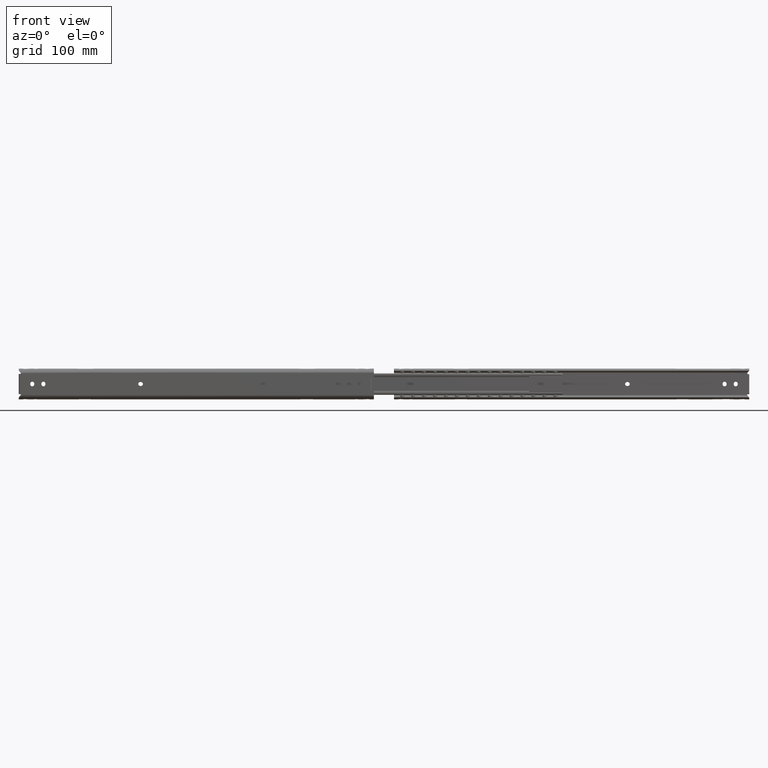
[diagram: clean part render]
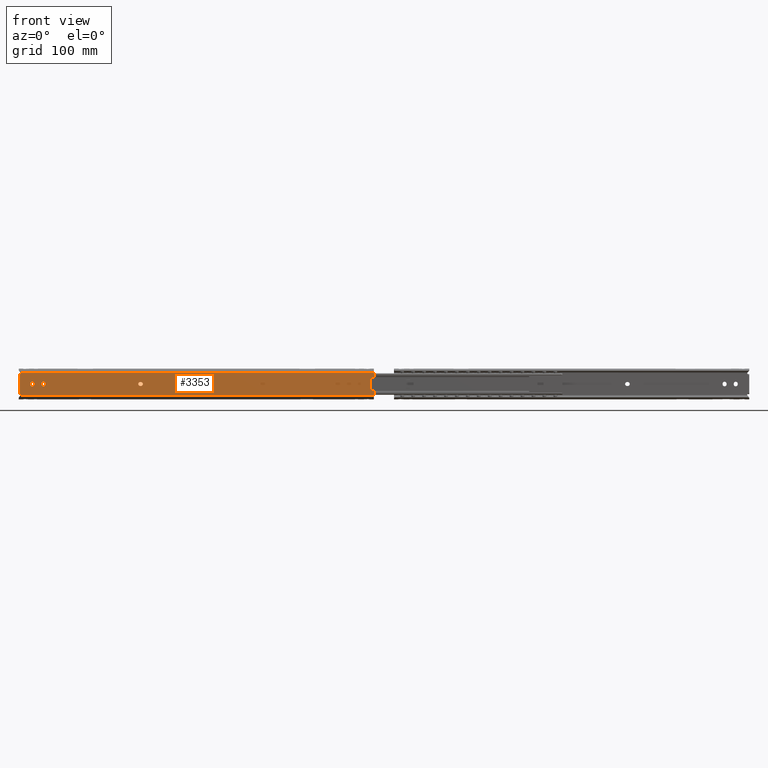
[diagram: same view with one face highlighted and labeled with its STEP entity id]
A machine part, front view. The second image highlights one B-rep face of the part: STEP entity #3353.
In plain terms, the highlighted face is a freeform B-spline surface patch.
Its self-contained STEP definition (entity closure, byte-faithful):
#49=CARTESIAN_POINT('',(-817.250000000000000,-19.100000000000001,-0.400000000000092));
#50=VERTEX_POINT('',#49);
#58=CARTESIAN_POINT('',(-817.250000000000000,-19.100000000000001,0.400000000000006));
#59=VERTEX_POINT('',#58);
#60=CARTESIAN_POINT('',(-817.250000000000000,-19.100000000000001,-0.400000000000092));
#61=CARTESIAN_POINT('',(-817.250000000000000,-19.100000000000001,0.400000000000006));
#62=QUASI_UNIFORM_CURVE('',1,(#60,#61),.UNSPECIFIED.,.F.,.U.);
#63=EDGE_CURVE('',#50,#59,#62,.T.);
#116=CARTESIAN_POINT('',(-821.750000000000000,-19.100000000000001,0.400000000000006));
#117=VERTEX_POINT('',#116);
#118=CARTESIAN_POINT('',(-821.750000000000000,-19.100000000000001,0.400000000000006));
#119=CARTESIAN_POINT('',(-821.750000000000110,-19.099999999999991,2.650000000000006));
#120=CARTESIAN_POINT('',(-819.500000000000000,-19.100000000000001,2.650000000000005));
#121=CARTESIAN_POINT('',(-817.250000000000000,-19.099999999999991,2.650000000000006));
#122=CARTESIAN_POINT('',(-817.250000000000000,-19.100000000000001,0.400000000000006));
#130=(BOUNDED_CURVE()B_SPLINE_CURVE(2,(#118,#119,#120,#121,#122),.UNSPECIFIED.,.F.,.U.)B_SPLINE_CURVE_WITH_KNOTS((3,2,3),(0.0,0.500000000000000,1.0),.UNSPECIFIED.)CURVE()GEOMETRIC_REPRESENTATION_ITEM()RATIONAL_B_SPLINE_CURVE((1.0,0.707106781186547,1.0,0.707106781186547,1.0))REPRESENTATION_ITEM(''));
#131=EDGE_CURVE('',#117,#59,#130,.T.);
#147=CARTESIAN_POINT('',(-821.750000000000000,-19.100000000000001,-0.400000000000092));
#148=VERTEX_POINT('',#147);
#149=CARTESIAN_POINT('',(-821.750000000000000,-19.100000000000001,0.400000000000006));
#150=CARTESIAN_POINT('',(-821.750000000000000,-19.100000000000001,-0.400000000000092));
#151=QUASI_UNIFORM_CURVE('',1,(#149,#150),.UNSPECIFIED.,.F.,.U.);
#152=EDGE_CURVE('',#117,#148,#151,.T.);
#203=CARTESIAN_POINT('',(-817.250000000000000,-19.100000000000001,-0.400000000000092));
#204=CARTESIAN_POINT('',(-817.250000000000000,-19.099999999999991,-2.650000000000091));
#205=CARTESIAN_POINT('',(-819.500000000000000,-19.100000000000001,-2.650000000000091));
#206=CARTESIAN_POINT('',(-821.750000000000110,-19.099999999999991,-2.650000000000091));
#207=CARTESIAN_POINT('',(-821.750000000000000,-19.100000000000001,-0.400000000000092));
#215=(BOUNDED_CURVE()B_SPLINE_CURVE(2,(#203,#204,#205,#206,#207),.UNSPECIFIED.,.F.,.U.)B_SPLINE_CURVE_WITH_KNOTS((3,2,3),(0.0,0.500000000000000,1.0),.UNSPECIFIED.)CURVE()GEOMETRIC_REPRESENTATION_ITEM()RATIONAL_B_SPLINE_CURVE((1.0,0.707106781186547,1.0,0.707106781186547,1.0))REPRESENTATION_ITEM(''));
#216=EDGE_CURVE('',#50,#148,#215,.T.);
#227=CARTESIAN_POINT('',(-459.850000000000020,-19.100000000000001,0.400000000000006));
#228=VERTEX_POINT('',#227);
#236=CARTESIAN_POINT('',(-459.850000000000020,-19.100000000000001,-0.400000000000092));
#237=VERTEX_POINT('',#236);
#238=CARTESIAN_POINT('',(-459.850000000000020,-19.100000000000001,0.400000000000006));
#239=CARTESIAN_POINT('',(-459.850000000000020,-19.100000000000001,-0.400000000000092));
#240=QUASI_UNIFORM_CURVE('',1,(#238,#239),.UNSPECIFIED.,.F.,.U.);
#241=EDGE_CURVE('',#228,#237,#240,.T.);
#294=CARTESIAN_POINT('',(-455.350000000000020,-19.100000000000001,-0.400000000000092));
#295=VERTEX_POINT('',#294);
#296=CARTESIAN_POINT('',(-455.350000000000020,-19.100000000000001,-0.400000000000092));
#297=CARTESIAN_POINT('',(-455.350000000000020,-19.099999999999991,-2.650000000000091));
#298=CARTESIAN_POINT('',(-457.600000000000020,-19.100000000000001,-2.650000000000091));
#299=CARTESIAN_POINT('',(-459.850000000000080,-19.099999999999991,-2.650000000000091));
#300=CARTESIAN_POINT('',(-459.850000000000020,-19.100000000000001,-0.400000000000092));
#308=(BOUNDED_CURVE()B_SPLINE_CURVE(2,(#296,#297,#298,#299,#300),.UNSPECIFIED.,.F.,.U.)B_SPLINE_CURVE_WITH_KNOTS((3,2,3),(0.0,0.500000000000000,1.0),.UNSPECIFIED.)CURVE()GEOMETRIC_REPRESENTATION_ITEM()RATIONAL_B_SPLINE_CURVE((1.0,0.707106781186547,1.0,0.707106781186547,1.0))REPRESENTATION_ITEM(''));
#309=EDGE_CURVE('',#295,#237,#308,.T.);
#325=CARTESIAN_POINT('',(-455.350000000000020,-19.100000000000001,0.400000000000006));
#326=VERTEX_POINT('',#325);
#327=CARTESIAN_POINT('',(-455.350000000000020,-19.100000000000001,-0.400000000000092));
#328=CARTESIAN_POINT('',(-455.350000000000020,-19.100000000000001,0.400000000000006));
#329=QUASI_UNIFORM_CURVE('',1,(#327,#328),.UNSPECIFIED.,.F.,.U.);
#330=EDGE_CURVE('',#295,#326,#329,.T.);
#381=CARTESIAN_POINT('',(-459.850000000000020,-19.100000000000001,0.400000000000006));
#382=CARTESIAN_POINT('',(-459.850000000000080,-19.099999999999991,2.650000000000006));
#383=CARTESIAN_POINT('',(-457.600000000000020,-19.100000000000001,2.650000000000005));
#384=CARTESIAN_POINT('',(-455.350000000000020,-19.099999999999991,2.650000000000006));
#385=CARTESIAN_POINT('',(-455.350000000000020,-19.100000000000001,0.400000000000006));
#393=(BOUNDED_CURVE()B_SPLINE_CURVE(2,(#381,#382,#383,#384,#385),.UNSPECIFIED.,.F.,.U.)B_SPLINE_CURVE_WITH_KNOTS((3,2,3),(0.0,0.500000000000000,1.0),.UNSPECIFIED.)CURVE()GEOMETRIC_REPRESENTATION_ITEM()RATIONAL_B_SPLINE_CURVE((1.0,0.707106781186547,1.0,0.707106781186547,1.0))REPRESENTATION_ITEM(''));
#394=EDGE_CURVE('',#228,#326,#393,.T.);
#405=CARTESIAN_POINT('',(-442.649999999999980,-19.100000000000001,-0.400000000000092));
#406=VERTEX_POINT('',#405);
#414=CARTESIAN_POINT('',(-442.649999999999980,-19.100000000000001,0.400000000000006));
#415=VERTEX_POINT('',#414);
#416=CARTESIAN_POINT('',(-442.649999999999980,-19.100000000000001,-0.400000000000092));
#417=CARTESIAN_POINT('',(-442.649999999999980,-19.100000000000001,0.400000000000006));
#418=QUASI_UNIFORM_CURVE('',1,(#416,#417),.UNSPECIFIED.,.F.,.U.);
#419=EDGE_CURVE('',#406,#415,#418,.T.);
#472=CARTESIAN_POINT('',(-447.149999999999980,-19.100000000000001,0.400000000000006));
#473=VERTEX_POINT('',#472);
#474=CARTESIAN_POINT('',(-447.149999999999980,-19.100000000000001,0.400000000000006));
#475=CARTESIAN_POINT('',(-447.150000000000030,-19.099999999999991,2.650000000000006));
#476=CARTESIAN_POINT('',(-444.899999999999980,-19.100000000000001,2.650000000000005));
#477=CARTESIAN_POINT('',(-442.650000000000150,-19.099999999999991,2.650000000000006));
#478=CARTESIAN_POINT('',(-442.649999999999980,-19.100000000000001,0.400000000000006));
#486=(BOUNDED_CURVE()B_SPLINE_CURVE(2,(#474,#475,#476,#477,#478),.UNSPECIFIED.,.F.,.U.)B_SPLINE_CURVE_WITH_KNOTS((3,2,3),(0.0,0.500000000000000,1.0),.UNSPECIFIED.)CURVE()GEOMETRIC_REPRESENTATION_ITEM()RATIONAL_B_SPLINE_CURVE((1.0,0.707106781186547,1.0,0.707106781186547,1.0))REPRESENTATION_ITEM(''));
#487=EDGE_CURVE('',#473,#415,#486,.T.);
#503=CARTESIAN_POINT('',(-447.149999999999980,-19.100000000000001,-0.400000000000092));
#504=VERTEX_POINT('',#503);
#505=CARTESIAN_POINT('',(-447.149999999999980,-19.100000000000001,0.400000000000006));
#506=CARTESIAN_POINT('',(-447.149999999999980,-19.100000000000001,-0.400000000000092));
#507=QUASI_UNIFORM_CURVE('',1,(#505,#506),.UNSPECIFIED.,.F.,.U.);
#508=EDGE_CURVE('',#473,#504,#507,.T.);
#559=CARTESIAN_POINT('',(-442.649999999999980,-19.100000000000001,-0.400000000000092));
#560=CARTESIAN_POINT('',(-442.650000000000150,-19.099999999999991,-2.650000000000091));
#561=CARTESIAN_POINT('',(-444.899999999999980,-19.100000000000001,-2.650000000000091));
#562=CARTESIAN_POINT('',(-447.150000000000030,-19.099999999999991,-2.650000000000091));
#563=CARTESIAN_POINT('',(-447.149999999999980,-19.100000000000001,-0.400000000000092));
#571=(BOUNDED_CURVE()B_SPLINE_CURVE(2,(#559,#560,#561,#562,#563),.UNSPECIFIED.,.F.,.U.)B_SPLINE_CURVE_WITH_KNOTS((3,2,3),(0.0,0.500000000000000,1.0),.UNSPECIFIED.)CURVE()GEOMETRIC_REPRESENTATION_ITEM()RATIONAL_B_SPLINE_CURVE((1.0,0.707106781186547,1.0,0.707106781186547,1.0))REPRESENTATION_ITEM(''));
#572=EDGE_CURVE('',#406,#504,#571,.T.);
#615=CARTESIAN_POINT('',(-470.699999999999990,-19.100000000000001,2.250000000000000));
#616=VERTEX_POINT('',#615);
#622=CARTESIAN_POINT('',(-470.699999999999990,-19.100000000000001,-2.250000000000000));
#623=VERTEX_POINT('',#622);
#624=CARTESIAN_POINT('',(-470.699999999999990,-19.100000000000001,-2.250000000000000));
#625=CARTESIAN_POINT('',(-472.949999999999930,-19.099999999999991,-2.250000000000000));
#626=CARTESIAN_POINT('',(-472.949999999999990,-19.100000000000001,-4.526963E-016));
#627=CARTESIAN_POINT('',(-472.949999999999930,-19.099999999999991,2.250000000000000));
#628=CARTESIAN_POINT('',(-470.699999999999990,-19.100000000000001,2.250000000000000));
#636=(BOUNDED_CURVE()B_SPLINE_CURVE(2,(#624,#625,#626,#627,#628),.UNSPECIFIED.,.F.,.U.)B_SPLINE_CURVE_WITH_KNOTS((3,2,3),(0.0,0.500000000000000,1.0),.UNSPECIFIED.)CURVE()GEOMETRIC_REPRESENTATION_ITEM()RATIONAL_B_SPLINE_CURVE((1.0,0.707106781186547,1.0,0.707106781186547,1.0))REPRESENTATION_ITEM(''));
#637=EDGE_CURVE('',#623,#616,#636,.T.);
#652=CARTESIAN_POINT('',(-469.899999999999980,-19.100000000000001,2.250000000000000));
#653=VERTEX_POINT('',#652);
#661=CARTESIAN_POINT('',(-469.899999999999980,-19.100000000000001,2.250000000000000));
#662=CARTESIAN_POINT('',(-470.699999999999990,-19.100000000000001,2.250000000000000));
#663=QUASI_UNIFORM_CURVE('',1,(#661,#662),.UNSPECIFIED.,.F.,.U.);
#664=EDGE_CURVE('',#653,#616,#663,.T.);
#710=CARTESIAN_POINT('',(-469.899999999999980,-19.100000000000001,-2.250000000000000));
#711=VERTEX_POINT('',#710);
#717=CARTESIAN_POINT('',(-469.899999999999980,-19.100000000000001,2.250000000000000));
#718=CARTESIAN_POINT('',(-467.649999999999920,-19.099999999999991,2.250000000000000));
#719=CARTESIAN_POINT('',(-467.649999999999980,-19.100000000000001,-4.526963E-016));
#720=CARTESIAN_POINT('',(-467.649999999999920,-19.099999999999991,-2.250000000000000));
#721=CARTESIAN_POINT('',(-469.899999999999980,-19.100000000000001,-2.250000000000000));
#729=(BOUNDED_CURVE()B_SPLINE_CURVE(2,(#717,#718,#719,#720,#721),.UNSPECIFIED.,.F.,.U.)B_SPLINE_CURVE_WITH_KNOTS((3,2,3),(0.0,0.500000000000000,1.0),.UNSPECIFIED.)CURVE()GEOMETRIC_REPRESENTATION_ITEM()RATIONAL_B_SPLINE_CURVE((1.0,0.707106781186547,1.0,0.707106781186547,1.0))REPRESENTATION_ITEM(''));
#730=EDGE_CURVE('',#653,#711,#729,.T.);
#742=CARTESIAN_POINT('',(-470.699999999999990,-19.100000000000001,-2.250000000000000));
#743=CARTESIAN_POINT('',(-469.899999999999980,-19.100000000000001,-2.250000000000000));
#744=QUASI_UNIFORM_CURVE('',1,(#742,#743),.UNSPECIFIED.,.F.,.U.);
#745=EDGE_CURVE('',#623,#711,#744,.T.);
#761=CARTESIAN_POINT('',(-804.549999999999950,-19.100000000000001,-0.400000000000092));
#762=VERTEX_POINT('',#761);
#770=CARTESIAN_POINT('',(-804.549999999999950,-19.100000000000001,0.400000000000006));
#771=VERTEX_POINT('',#770);
#772=CARTESIAN_POINT('',(-804.549999999999950,-19.100000000000001,-0.400000000000092));
#773=CARTESIAN_POINT('',(-804.549999999999950,-19.100000000000001,0.400000000000006));
#774=QUASI_UNIFORM_CURVE('',1,(#772,#773),.UNSPECIFIED.,.F.,.U.);
#775=EDGE_CURVE('',#762,#771,#774,.T.);
#828=CARTESIAN_POINT('',(-809.050000000000070,-19.100000000000001,0.400000000000006));
#829=VERTEX_POINT('',#828);
#830=CARTESIAN_POINT('',(-809.049999999999950,-19.100000000000001,0.400000000000006));
#831=CARTESIAN_POINT('',(-809.049999999999730,-19.099999999999991,2.650000000000006));
#832=CARTESIAN_POINT('',(-806.799999999999950,-19.100000000000001,2.650000000000005));
#833=CARTESIAN_POINT('',(-804.549999999999950,-19.099999999999991,2.650000000000006));
#834=CARTESIAN_POINT('',(-804.549999999999950,-19.100000000000001,0.400000000000006));
#842=(BOUNDED_CURVE()B_SPLINE_CURVE(2,(#830,#831,#832,#833,#834),.UNSPECIFIED.,.F.,.U.)B_SPLINE_CURVE_WITH_KNOTS((3,2,3),(0.0,0.500000000000000,1.0),.UNSPECIFIED.)CURVE()GEOMETRIC_REPRESENTATION_ITEM()RATIONAL_B_SPLINE_CURVE((1.0,0.707106781186547,1.0,0.707106781186547,1.0))REPRESENTATION_ITEM(''));
#843=EDGE_CURVE('',#829,#771,#842,.T.);
#859=CARTESIAN_POINT('',(-809.050000000000070,-19.100000000000001,-0.400000000000092));
#860=VERTEX_POINT('',#859);
#861=CARTESIAN_POINT('',(-809.050000000000070,-19.100000000000001,0.400000000000006));
#862=CARTESIAN_POINT('',(-809.050000000000070,-19.100000000000001,-0.400000000000092));
#863=QUASI_UNIFORM_CURVE('',1,(#861,#862),.UNSPECIFIED.,.F.,.U.);
#864=EDGE_CURVE('',#829,#860,#863,.T.);
#915=CARTESIAN_POINT('',(-804.549999999999950,-19.100000000000001,-0.400000000000092));
#916=CARTESIAN_POINT('',(-804.549999999999950,-19.099999999999991,-2.650000000000091));
#917=CARTESIAN_POINT('',(-806.799999999999950,-19.100000000000001,-2.650000000000091));
#918=CARTESIAN_POINT('',(-809.049999999999730,-19.099999999999991,-2.650000000000091));
#919=CARTESIAN_POINT('',(-809.049999999999950,-19.100000000000001,-0.400000000000092));
#927=(BOUNDED_CURVE()B_SPLINE_CURVE(2,(#915,#916,#917,#918,#919),.UNSPECIFIED.,.F.,.U.)B_SPLINE_CURVE_WITH_KNOTS((3,2,3),(0.0,0.500000000000000,1.0),.UNSPECIFIED.)CURVE()GEOMETRIC_REPRESENTATION_ITEM()RATIONAL_B_SPLINE_CURVE((1.0,0.707106781186547,1.0,0.707106781186547,1.0))REPRESENTATION_ITEM(''));
#928=EDGE_CURVE('',#762,#860,#927,.T.);
#971=CARTESIAN_POINT('',(-695.300000000000070,-19.100000000000001,-2.250000000000000));
#972=VERTEX_POINT('',#971);
#978=CARTESIAN_POINT('',(-695.300000000000070,-19.100000000000001,2.250000000000000));
#979=VERTEX_POINT('',#978);
#980=CARTESIAN_POINT('',(-695.300000000000070,-19.100000000000001,2.250000000000000));
#981=CARTESIAN_POINT('',(-693.050000000000070,-19.099999999999991,2.250000000000000));
#982=CARTESIAN_POINT('',(-693.050000000000070,-19.100000000000001,-4.526963E-016));
#983=CARTESIAN_POINT('',(-693.050000000000070,-19.099999999999991,-2.250000000000000));
#984=CARTESIAN_POINT('',(-695.300000000000070,-19.100000000000001,-2.250000000000000));
#992=(BOUNDED_CURVE()B_SPLINE_CURVE(2,(#980,#981,#982,#983,#984),.UNSPECIFIED.,.F.,.U.)B_SPLINE_CURVE_WITH_KNOTS((3,2,3),(0.0,0.500000000000000,1.0),.UNSPECIFIED.)CURVE()GEOMETRIC_REPRESENTATION_ITEM()RATIONAL_B_SPLINE_CURVE((1.0,0.707106781186547,1.0,0.707106781186547,1.0))REPRESENTATION_ITEM(''));
#993=EDGE_CURVE('',#979,#972,#992,.T.);
#1016=CARTESIAN_POINT('',(-696.100000000000020,-19.100000000000001,2.250000000000000));
#1017=VERTEX_POINT('',#1016);
#1018=CARTESIAN_POINT('',(-696.100000000000020,-19.100000000000001,2.250000000000000));
#1019=CARTESIAN_POINT('',(-695.300000000000070,-19.100000000000001,2.250000000000000));
#1020=QUASI_UNIFORM_CURVE('',1,(#1018,#1019),.UNSPECIFIED.,.F.,.U.);
#1021=EDGE_CURVE('',#1017,#979,#1020,.T.);
#1067=CARTESIAN_POINT('',(-696.100000000000020,-19.100000000000001,-2.250000000000000));
#1068=VERTEX_POINT('',#1067);
#1069=CARTESIAN_POINT('',(-696.100000000000020,-19.100000000000001,-2.250000000000000));
#1070=CARTESIAN_POINT('',(-698.349999999999910,-19.099999999999991,-2.250000000000000));
#1071=CARTESIAN_POINT('',(-698.350000000000020,-19.100000000000001,-4.526963E-016));
#1072=CARTESIAN_POINT('',(-698.349999999999910,-19.099999999999991,2.250000000000000));
#1073=CARTESIAN_POINT('',(-696.100000000000020,-19.100000000000001,2.250000000000000));
#1081=(BOUNDED_CURVE()B_SPLINE_CURVE(2,(#1069,#1070,#1071,#1072,#1073),.UNSPECIFIED.,.F.,.U.)B_SPLINE_CURVE_WITH_KNOTS((3,2,3),(0.0,0.500000000000000,1.0),.UNSPECIFIED.)CURVE()GEOMETRIC_REPRESENTATION_ITEM()RATIONAL_B_SPLINE_CURVE((1.0,0.707106781186547,1.0,0.707106781186547,1.0))REPRESENTATION_ITEM(''));
#1082=EDGE_CURVE('',#1068,#1017,#1081,.T.);
#1103=CARTESIAN_POINT('',(-695.300000000000070,-19.100000000000001,-2.250000000000000));
#1104=CARTESIAN_POINT('',(-696.100000000000020,-19.100000000000001,-2.250000000000000));
#1105=QUASI_UNIFORM_CURVE('',1,(#1103,#1104),.UNSPECIFIED.,.F.,.U.);
#1106=EDGE_CURVE('',#972,#1068,#1105,.T.);
#1149=CARTESIAN_POINT('',(-555.600000000000020,-19.100000000000001,-2.250000000000000));
#1150=VERTEX_POINT('',#1149);
#1156=CARTESIAN_POINT('',(-555.600000000000020,-19.100000000000001,2.250000000000000));
#1157=VERTEX_POINT('',#1156);
#1158=CARTESIAN_POINT('',(-555.600000000000020,-19.100000000000001,2.250000000000000));
#1159=CARTESIAN_POINT('',(-553.350000000000140,-19.099999999999991,2.250000000000000));
#1160=CARTESIAN_POINT('',(-553.350000000000020,-19.100000000000001,-4.526963E-016));
#1161=CARTESIAN_POINT('',(-553.350000000000140,-19.099999999999991,-2.250000000000000));
#1162=CARTESIAN_POINT('',(-555.600000000000020,-19.100000000000001,-2.250000000000000));
#1170=(BOUNDED_CURVE()B_SPLINE_CURVE(2,(#1158,#1159,#1160,#1161,#1162),.UNSPECIFIED.,.F.,.U.)B_SPLINE_CURVE_WITH_KNOTS((3,2,3),(0.0,0.500000000000000,1.0),.UNSPECIFIED.)CURVE()GEOMETRIC_REPRESENTATION_ITEM()RATIONAL_B_SPLINE_CURVE((1.0,0.707106781186547,1.0,0.707106781186547,1.0))REPRESENTATION_ITEM(''));
#1171=EDGE_CURVE('',#1157,#1150,#1170,.T.);
#1186=CARTESIAN_POINT('',(-556.399999999999980,-19.100000000000001,-2.250000000000000));
#1187=VERTEX_POINT('',#1186);
#1195=CARTESIAN_POINT('',(-556.399999999999980,-19.100000000000001,-2.250000000000000));
#1196=CARTESIAN_POINT('',(-555.600000000000020,-19.100000000000001,-2.250000000000000));
#1197=QUASI_UNIFORM_CURVE('',1,(#1195,#1196),.UNSPECIFIED.,.F.,.U.);
#1198=EDGE_CURVE('',#1187,#1150,#1197,.T.);
#1244=CARTESIAN_POINT('',(-556.399999999999980,-19.100000000000001,2.250000000000000));
#1245=VERTEX_POINT('',#1244);
#1251=CARTESIAN_POINT('',(-556.399999999999980,-19.100000000000001,-2.250000000000000));
#1252=CARTESIAN_POINT('',(-558.649999999999980,-19.099999999999991,-2.250000000000000));
#1253=CARTESIAN_POINT('',(-558.649999999999980,-19.100000000000001,-4.526963E-016));
#1254=CARTESIAN_POINT('',(-558.649999999999980,-19.099999999999991,2.250000000000000));
#1255=CARTESIAN_POINT('',(-556.399999999999980,-19.100000000000001,2.250000000000000));
#1263=(BOUNDED_CURVE()B_SPLINE_CURVE(2,(#1251,#1252,#1253,#1254,#1255),.UNSPECIFIED.,.F.,.U.)B_SPLINE_CURVE_WITH_KNOTS((3,2,3),(0.0,0.500000000000000,1.0),.UNSPECIFIED.)CURVE()GEOMETRIC_REPRESENTATION_ITEM()RATIONAL_B_SPLINE_CURVE((1.0,0.707106781186547,1.0,0.707106781186547,1.0))REPRESENTATION_ITEM(''));
#1264=EDGE_CURVE('',#1187,#1245,#1263,.T.);
#1276=CARTESIAN_POINT('',(-555.600000000000020,-19.100000000000001,2.250000000000000));
#1277=CARTESIAN_POINT('',(-556.399999999999980,-19.100000000000001,2.250000000000000));
#1278=QUASI_UNIFORM_CURVE('',1,(#1276,#1277),.UNSPECIFIED.,.F.,.U.);
#1279=EDGE_CURVE('',#1157,#1245,#1278,.T.);
#1306=CARTESIAN_POINT('',(-833.399999999999980,-19.100000000000001,11.500000000000000));
#1307=VERTEX_POINT('',#1306);
#1328=CARTESIAN_POINT('',(-833.399999999999980,-19.100000000000001,-11.500000000000000));
#1329=VERTEX_POINT('',#1328);
#1343=CARTESIAN_POINT('',(-833.399999999999980,-19.100000000000001,11.500000000000000));
#1344=CARTESIAN_POINT('',(-833.399999999999980,-19.100000000000001,-11.500000000000000));
#1345=QUASI_UNIFORM_CURVE('',1,(#1343,#1344),.UNSPECIFIED.,.F.,.U.);
#1346=EDGE_CURVE('',#1307,#1329,#1345,.T.);
#1365=CARTESIAN_POINT('',(-433.100000000000020,-19.100000000000001,7.500000000000000));
#1366=VERTEX_POINT('',#1365);
#1382=CARTESIAN_POINT('',(-433.100000000000020,-19.100000000000001,-7.500000000000200));
#1383=VERTEX_POINT('',#1382);
#1384=CARTESIAN_POINT('',(-433.100000000000020,-19.100000000000001,-7.500000000000200));
#1385=CARTESIAN_POINT('',(-433.100000000000020,-19.100000000000001,7.500000000000000));
#1386=QUASI_UNIFORM_CURVE('',1,(#1384,#1385),.UNSPECIFIED.,.F.,.U.);
#1387=EDGE_CURVE('',#1383,#1366,#1386,.T.);
#2139=CARTESIAN_POINT('',(-429.0,-19.100000000000001,7.500000000000000));
#2140=VERTEX_POINT('',#2139);
#2148=CARTESIAN_POINT('',(-429.0,-19.100000000000001,7.500000000000000));
#2149=CARTESIAN_POINT('',(-433.100000000000020,-19.100000000000001,7.500000000000000));
#2150=QUASI_UNIFORM_CURVE('',1,(#2148,#2149),.UNSPECIFIED.,.F.,.U.);
#2151=EDGE_CURVE('',#2140,#1366,#2150,.T.);
#2175=CARTESIAN_POINT('',(-429.0,-19.100000000000001,-7.500000000000200));
#2176=VERTEX_POINT('',#2175);
#2177=CARTESIAN_POINT('',(-433.100000000000020,-19.100000000000001,-7.500000000000200));
#2178=CARTESIAN_POINT('',(-429.0,-19.100000000000001,-7.500000000000200));
#2179=QUASI_UNIFORM_CURVE('',1,(#2177,#2178),.UNSPECIFIED.,.F.,.U.);
#2180=EDGE_CURVE('',#1383,#2176,#2179,.T.);
#2346=CARTESIAN_POINT('',(-832.639865253740030,-19.100000000000001,12.578915999999900));
#2347=VERTEX_POINT('',#2346);
#2348=CARTESIAN_POINT('',(-832.639865253739910,-19.100000000000001,12.578915999999960));
#2349=CARTESIAN_POINT('',(-832.498933981360660,-19.100000000000001,12.184613891433369));
#2350=CARTESIAN_POINT('',(-832.740101415456930,-19.100000000000001,11.842306945716681));
#2351=CARTESIAN_POINT('',(-832.981268849553320,-19.100000000000001,11.500000000000005));
#2352=CARTESIAN_POINT('',(-833.399999999999980,-19.100000000000001,11.500000000000000));
#2360=(BOUNDED_CURVE()B_SPLINE_CURVE(2,(#2348,#2349,#2350,#2351,#2352),.UNSPECIFIED.,.F.,.U.)B_SPLINE_CURVE_WITH_KNOTS((3,2,3),(0.0,0.500000000000000,1.0),.UNSPECIFIED.)CURVE()GEOMETRIC_REPRESENTATION_ITEM()RATIONAL_B_SPLINE_CURVE((1.0,0.887679040060803,1.0,0.887679040060803,1.0))REPRESENTATION_ITEM(''));
#2361=EDGE_CURVE('',#2347,#1307,#2360,.T.);
#2556=CARTESIAN_POINT('',(-832.639865253740030,-19.100000000000001,-12.578916000000000));
#2557=VERTEX_POINT('',#2556);
#2558=CARTESIAN_POINT('',(-833.399999999999980,-19.100000000000001,-11.500000000000000));
#2559=CARTESIAN_POINT('',(-832.981268849553200,-19.099999999999998,-11.499999999999998));
#2560=CARTESIAN_POINT('',(-832.740101415456930,-19.100000000000001,-11.842306945716720));
#2561=CARTESIAN_POINT('',(-832.498933981360550,-19.099999999999998,-12.184613891433452));
#2562=CARTESIAN_POINT('',(-832.639865253739910,-19.100000000000001,-12.578916000000040));
#2570=(BOUNDED_CURVE()B_SPLINE_CURVE(2,(#2558,#2559,#2560,#2561,#2562),.UNSPECIFIED.,.F.,.U.)B_SPLINE_CURVE_WITH_KNOTS((3,2,3),(0.0,0.500000000000000,1.0),.UNSPECIFIED.)CURVE()GEOMETRIC_REPRESENTATION_ITEM()RATIONAL_B_SPLINE_CURVE((1.0,0.887679040060790,1.0,0.887679040060790,1.0))REPRESENTATION_ITEM(''));
#2571=EDGE_CURVE('',#1329,#2557,#2570,.T.);
#2938=CARTESIAN_POINT('',(-429.0,-19.100000000000001,-12.578916000000000));
#2939=VERTEX_POINT('',#2938);
#2940=CARTESIAN_POINT('',(-832.639865253740030,-19.100000000000001,-12.578916000000000));
#2941=CARTESIAN_POINT('',(-429.0,-19.100000000000001,-12.578916000000000));
#2942=QUASI_UNIFORM_CURVE('',1,(#2940,#2941),.UNSPECIFIED.,.F.,.U.);
#2943=EDGE_CURVE('',#2557,#2939,#2942,.T.);
#2980=CARTESIAN_POINT('',(-429.0,-19.100000000001000,12.578915999999900));
#2981=VERTEX_POINT('',#2980);
#2982=CARTESIAN_POINT('',(-832.639865253740030,-19.100000000000001,12.578915999999900));
#2983=CARTESIAN_POINT('',(-429.0,-19.100000000001000,12.578915999999900));
#2984=QUASI_UNIFORM_CURVE('',1,(#2982,#2983),.UNSPECIFIED.,.F.,.U.);
#2985=EDGE_CURVE('',#2347,#2981,#2984,.T.);
#3239=CARTESIAN_POINT('',(-429.0,-19.100000000001000,12.578915999999900));
#3240=CARTESIAN_POINT('',(-429.0,-19.100000000000001,7.500000000000000));
#3241=QUASI_UNIFORM_CURVE('',1,(#3239,#3240),.UNSPECIFIED.,.F.,.U.);
#3242=EDGE_CURVE('',#2981,#2140,#3241,.T.);
#3271=CARTESIAN_POINT('',(-429.0,-19.100000000000001,-7.500000000000200));
#3272=CARTESIAN_POINT('',(-429.0,-19.100000000000001,-12.578916000000000));
#3273=QUASI_UNIFORM_CURVE('',1,(#3271,#3272),.UNSPECIFIED.,.F.,.U.);
#3274=EDGE_CURVE('',#2176,#2939,#3273,.T.);
#3294=CARTESIAN_POINT('',(-408.800219339004680,-19.100000000000001,-13.835549333594070));
#3295=CARTESIAN_POINT('',(-408.800219339004680,-19.100000000000001,13.835548433879779));
#3296=CARTESIAN_POINT('',(-853.599820432790580,-19.100000000000001,-13.835549333594070));
#3297=CARTESIAN_POINT('',(-853.599820432790580,-19.100000000000001,13.835548433879779));
#3298=B_SPLINE_SURFACE_WITH_KNOTS('',1,1,((#3294,#3296),(#3295,#3297)),.UNSPECIFIED.,.F.,.F.,.U.,(2,2),(2,2),(0.0,27.671097767473839),(0.0,444.799601093785780),.UNSPECIFIED.);
#3299=ORIENTED_EDGE('',*,*,#2180,.F.);
#3300=ORIENTED_EDGE('',*,*,#1387,.T.);
#3301=ORIENTED_EDGE('',*,*,#2151,.F.);
#3302=ORIENTED_EDGE('',*,*,#3242,.F.);
#3303=ORIENTED_EDGE('',*,*,#2985,.F.);
#3304=ORIENTED_EDGE('',*,*,#2361,.T.);
#3305=ORIENTED_EDGE('',*,*,#1346,.T.);
#3306=ORIENTED_EDGE('',*,*,#2571,.T.);
#3307=ORIENTED_EDGE('',*,*,#2943,.T.);
#3308=ORIENTED_EDGE('',*,*,#3274,.F.);
#3309=EDGE_LOOP('',(#3299,#3300,#3301,#3302,#3303,#3304,#3305,#3306,#3307,#3308));
#3310=FACE_OUTER_BOUND('',#3309,.T.);
#3311=ORIENTED_EDGE('',*,*,#394,.T.);
#3312=ORIENTED_EDGE('',*,*,#330,.F.);
#3313=ORIENTED_EDGE('',*,*,#309,.T.);
#3314=ORIENTED_EDGE('',*,*,#241,.F.);
#3315=EDGE_LOOP('',(#3311,#3312,#3313,#3314));
#3316=FACE_BOUND('',#3315,.T.);
#3317=ORIENTED_EDGE('',*,*,#572,.T.);
#3318=ORIENTED_EDGE('',*,*,#508,.F.);
#3319=ORIENTED_EDGE('',*,*,#487,.T.);
#3320=ORIENTED_EDGE('',*,*,#419,.F.);
#3321=EDGE_LOOP('',(#3317,#3318,#3319,#3320));
#3322=FACE_BOUND('',#3321,.T.);
#3323=ORIENTED_EDGE('',*,*,#1264,.T.);
#3324=ORIENTED_EDGE('',*,*,#1279,.F.);
#3325=ORIENTED_EDGE('',*,*,#1171,.T.);
#3326=ORIENTED_EDGE('',*,*,#1198,.F.);
#3327=EDGE_LOOP('',(#3323,#3324,#3325,#3326));
#3328=FACE_BOUND('',#3327,.T.);
#3329=ORIENTED_EDGE('',*,*,#216,.T.);
#3330=ORIENTED_EDGE('',*,*,#152,.F.);
#3331=ORIENTED_EDGE('',*,*,#131,.T.);
#3332=ORIENTED_EDGE('',*,*,#63,.F.);
#3333=EDGE_LOOP('',(#3329,#3330,#3331,#3332));
#3334=FACE_BOUND('',#3333,.T.);
#3335=ORIENTED_EDGE('',*,*,#1106,.T.);
#3336=ORIENTED_EDGE('',*,*,#1082,.T.);
#3337=ORIENTED_EDGE('',*,*,#1021,.T.);
#3338=ORIENTED_EDGE('',*,*,#993,.T.);
#3339=EDGE_LOOP('',(#3335,#3336,#3337,#3338));
#3340=FACE_BOUND('',#3339,.T.);
#3341=ORIENTED_EDGE('',*,*,#928,.T.);
#3342=ORIENTED_EDGE('',*,*,#864,.F.);
#3343=ORIENTED_EDGE('',*,*,#843,.T.);
#3344=ORIENTED_EDGE('',*,*,#775,.F.);
#3345=EDGE_LOOP('',(#3341,#3342,#3343,#3344));
#3346=FACE_BOUND('',#3345,.T.);
#3347=ORIENTED_EDGE('',*,*,#730,.T.);
#3348=ORIENTED_EDGE('',*,*,#745,.F.);
#3349=ORIENTED_EDGE('',*,*,#637,.T.);
#3350=ORIENTED_EDGE('',*,*,#664,.F.);
#3351=EDGE_LOOP('',(#3347,#3348,#3349,#3350));
#3352=FACE_BOUND('',#3351,.T.);
#3353=ADVANCED_FACE('',(#3310,#3316,#3322,#3328,#3334,#3340,#3346,#3352),#3298,.T.);